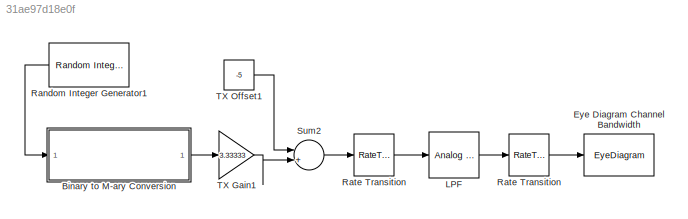
MODEL slx_31ae97d18e0f
KIND model
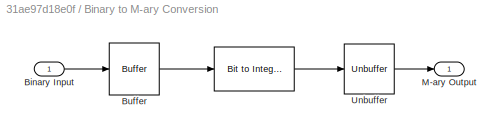
BLOCK [SubSystem] Binary to M-ary Conversion
  Ports = [1, 1]
  RequestExecContextInheritance = off
BLOCK [Reference] Binary to M-ary Conversion/   REF=commutil2/Bit to Integer
Converter
  Ports = [1, 1]
  SourceBlock = commutil2/Bit to Integer\nConverter
  SourceType = Bit to Integer Converter
  bitOrder = MSB first
  nbits = 2
  outDtype = Inherit via internal rule
  outDtypeSigned = Inherit via internal rule
  signedOutputValues = Unsigned
BLOCK [Inport] Binary to M-ary Conversion/Binary Input
  IconDisplay = Port number
BLOCK [Buffer] Binary to M-ary Conversion/Buffer
  N = 2
  TreatMby1Signals = One channel
BLOCK [Outport] Binary to M-ary Conversion/M-ary Output 
  IconDisplay = Port number
BLOCK [Unbuffer] Binary to M-ary Conversion/Unbuffer
  Ports = [1, 1]
  SampleBasedProcessing = Same as frame based
BLOCK [EyeDiagram] Eye Diagram Channel Bandwidth
  Ports = [1]
  ScopeSpecificationString = comm.scopes.EyeDiagramBlockCfg('CurrentConfiguration', extmgr.ConfigurationSet(extmgr.Configuration('Core','General UI',true,'FigureColor',[0.247058823529412 0.247058823529412 0.247058823529412]),extmgr.Configuration('Core','Source UI',true),extmgr.Configuration('Sources','WiredSimulink',true,'PointsPerSignal',100000),extmgr.Configuration('Sources','Simulink',false),extmgr.Configuration('Sources',...<+1377ch>
  Tag = EyeDiagram
BLOCK [Reference] LPF  REF=dsparch4/Analog
Filter Design
  N = 9
  Ports = [1, 1]
  Rp = 0.1
  Rs = 40
  SourceBlock = dsparch4/Analog\nFilter Design
  SourceType = Analog Filter Design
  Whi = 80
  Wlo = 2*pi*1200
  filttype = Lowpass
  method = Chebyshev I
BLOCK [Reference] Random Integer Generator1  REF=commrandsrc2/Random Integer
Generator
  Ports = [0, 1]
  SourceBlock = commrandsrc2/Random Integer\nGenerator
  SourceType = Random Integer Generator
  Ts = 1e-3
  frameBased = off
  mul = 2
  orient = off
  outDataType = double
  sampPerFrame = 1
  seed = randseed
BLOCK [RateTransition] Rate Transition
  OutPortSampleTime = 2e-5
BLOCK [RateTransition] Rate Transition 
  OutPortSampleTime = 2e-5
BLOCK [Sum] Sum2
  IconShape = round
  InputSameDT = off
  Inputs = |++
  OutDataTypeStr = Inherit: Inherit via internal rule
  Ports = [2, 1]
  SaturateOnIntegerOverflow = off
BLOCK [Gain] TX Gain1
  Gain = 3.33333
  OutDataTypeStr = Inherit: Inherit via internal rule
  ParamDataTypeStr = Inherit: Inherit via internal rule
  SaturateOnIntegerOverflow = off
BLOCK [Constant] TX Offset1
  Value = -5
LINE Binary to M-ary Conversion/ :1 -> Binary to M-ary Conversion/Unbuffer:1
LINE Binary to M-ary Conversion/Binary Input:1 -> Binary to M-ary Conversion/Buffer:1
LINE Binary to M-ary Conversion/Buffer:1 -> Binary to M-ary Conversion/ :1
LINE Binary to M-ary Conversion/Unbuffer:1 -> Binary to M-ary Conversion/M-ary Output :1
LINE Binary to M-ary Conversion:1 -> TX Gain1:1
LINE LPF:1 -> Rate Transition :1
LINE Random Integer Generator1:1 -> Binary to M-ary Conversion:1
LINE Rate Transition :1 -> Eye Diagram Channel Bandwidth:1
LINE Rate Transition:1 -> LPF:1
LINE Sum2:1 -> Rate Transition:1
LINE TX Gain1:1 -> Sum2:2
LINE TX Offset1:1 -> Sum2:1
